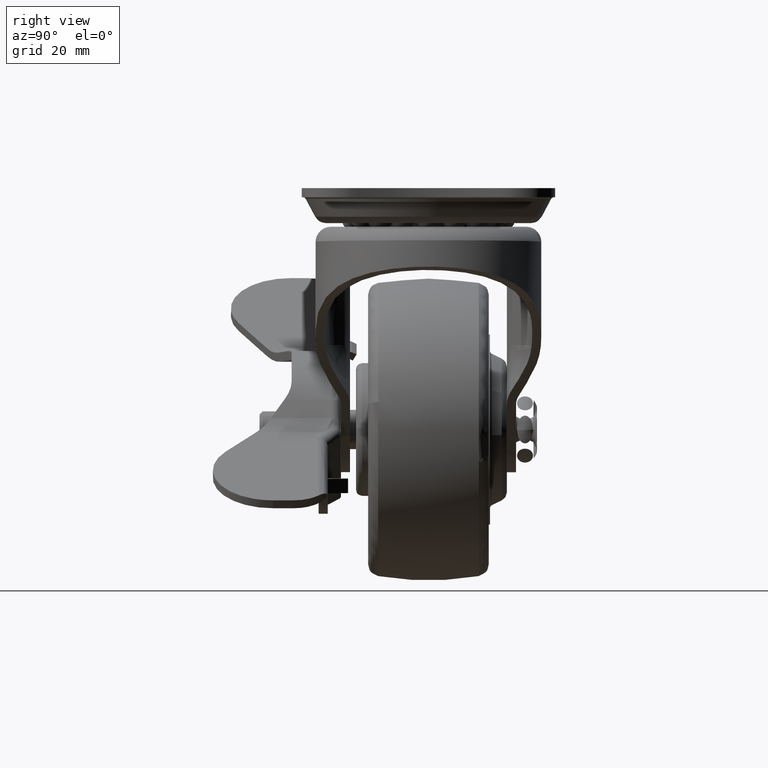
[diagram: clean part render]
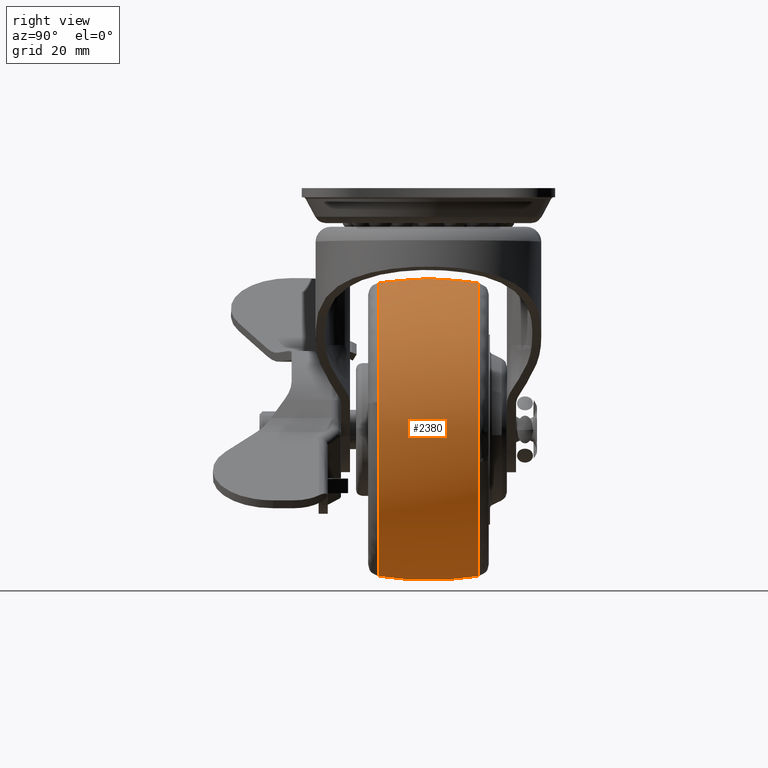
[diagram: same view with one face highlighted and labeled with its STEP entity id]
A machine part, right view. The second image highlights one B-rep face of the part: STEP entity #2380.
In plain terms, the highlighted face is a freeform B-spline surface patch.
Its self-contained STEP definition (entity closure, byte-faithful):
#1488=CARTESIAN_POINT('',(2.711844843311611,8.333322122936623,-43.817029349833831));
#1489=VERTEX_POINT('',#1488);
#1501=CARTESIAN_POINT('',(-21.0,8.333314671390102,-62.800667013600517));
#1502=VERTEX_POINT('',#1501);
#1503=CARTESIAN_POINT('',(2.711844843311611,8.333322122936623,-43.817029349833831));
#1504=CARTESIAN_POINT('',(2.366137890642453,8.333321531497434,-45.359507263044350));
#1505=CARTESIAN_POINT('',(1.399077786540821,8.333320403182880,-48.295009631839577));
#1506=CARTESIAN_POINT('',(-0.479330356080064,8.333319099606841,-51.668787444902421));
#1507=CARTESIAN_POINT('',(-2.415200701565841,8.333318106755872,-54.226632919238803));
#1508=CARTESIAN_POINT('',(-4.581288218339129,8.333317206347308,-56.536778730878638));
#1509=CARTESIAN_POINT('',(-7.069630898855527,8.333316432575836,-58.507440490089557));
#1510=CARTESIAN_POINT('',(-9.943548489110881,8.333315760828365,-60.201670391317457));
#1511=CARTESIAN_POINT('',(-12.606383505787869,8.333315287671557,-61.380184596905458));
#1512=CARTESIAN_POINT('',(-16.386082908451410,8.333314831990363,-62.486915577226412));
#1513=CARTESIAN_POINT('',(-19.205624842155402,8.333314687193234,-62.800958608729808));
#1514=CARTESIAN_POINT('',(-21.0,8.333314671390102,-62.800667013600517));
#1515=B_SPLINE_CURVE_WITH_KNOTS('',3,(#1503,#1504,#1505,#1506,#1507,#1508,#1509,#1510,#1511,#1512,#1513,#1514),.UNSPECIFIED.,.F.,.U.,(4,1,1,1,1,1,1,1,1,4),(0.000000052399855,4.742204515677404,9.228111765718264,11.535150591076770,14.354841987248671,18.712534639827592,21.019566522061659,24.351943221275100,27.427995256347760,32.811041082714873),.UNSPECIFIED.);
#1516=EDGE_CURVE('',#1489,#1502,#1515,.T.);
#1518=CARTESIAN_POINT('',(-45.138136501880808,8.333329461944473,-41.305826440742663));
#1519=VERTEX_POINT('',#1518);
#1536=CARTESIAN_POINT('',(-44.977125332039371,8.333330171501391,-34.547808609732982));
#1537=VERTEX_POINT('',#1536);
#1538=CARTESIAN_POINT('',(-45.138136501880808,8.333329461944473,-41.305826440742663));
#1539=CARTESIAN_POINT('',(-45.399535982546958,8.333329677826079,-39.060306082929273));
#1540=CARTESIAN_POINT('',(-45.345422155903421,8.333329917406212,-36.778325473716599));
#1541=CARTESIAN_POINT('',(-44.977125332039371,8.333330171501391,-34.547808609732982));
#1542=B_SPLINE_CURVE_WITH_KNOTS('',3,(#1538,#1539,#1540,#1541),.UNSPECIFIED.,.F.,.U.,(4,4),(1.555544E-009,6.781945244690015),.UNSPECIFIED.);
#1543=EDGE_CURVE('',#1519,#1537,#1542,.T.);
#1642=CARTESIAN_POINT('',(-21.0,8.333332865113482,-14.199336061692950));
#1643=VERTEX_POINT('',#1642);
#1644=CARTESIAN_POINT('',(-44.977125332039371,8.333330171501391,-34.547808609732982));
#1645=CARTESIAN_POINT('',(-44.759933692226021,8.333330270019333,-33.229582906079408));
#1646=CARTESIAN_POINT('',(-44.107328855077363,8.333330477111991,-30.629129219876500));
#1647=CARTESIAN_POINT('',(-42.412361753777887,8.333330827905694,-26.737103726747190));
#1648=CARTESIAN_POINT('',(-40.223741310928403,8.333331166291114,-23.464379694642020));
#1649=CARTESIAN_POINT('',(-38.005851309779921,8.333331448365136,-21.078602456761470));
#1650=CARTESIAN_POINT('',(-35.957299800854287,8.333331681707213,-19.291026021725951));
#1651=CARTESIAN_POINT('',(-33.548488957295902,8.333331929447558,-17.596604478143529));
#1652=CARTESIAN_POINT('',(-30.088960981624581,8.333332241863761,-15.826845305521360));
#1653=CARTESIAN_POINT('',(-25.809551663007230,8.333332570793216,-14.517746473948700));
#1654=CARTESIAN_POINT('',(-22.603208561160340,8.333332773956528,-14.199131151957239));
#1655=CARTESIAN_POINT('',(-21.0,8.333332865113482,-14.199336061692950));
#1656=B_SPLINE_CURVE_WITH_KNOTS('',3,(#1644,#1645,#1646,#1647,#1648,#1649,#1650,#1651,#1652,#1653,#1654,#1655),.UNSPECIFIED.,.F.,.U.,(4,1,1,1,1,1,1,1,1,4),(0.000000058395081,4.007986975718385,8.016001814997374,12.692028240616860,15.764814338395251,17.768797345565289,20.841583377062339,24.582403207564830,29.392015542777219,34.201612815759873),.UNSPECIFIED.);
#1657=EDGE_CURVE('',#1537,#1643,#1656,.T.);
#1659=CARTESIAN_POINT('',(-21.0,8.333332865113482,-14.199336061692950));
#1660=CARTESIAN_POINT('',(-19.866370945404920,8.333332871577154,-14.199283248625701));
#1661=CARTESIAN_POINT('',(-17.655796940417449,8.333332827209175,-14.354313816077630));
#1662=CARTESIAN_POINT('',(-14.208490859001850,8.333332581724518,-15.076123185097840));
#1663=CARTESIAN_POINT('',(-10.954005381272321,8.333332159362588,-16.276579649769179));
#1664=CARTESIAN_POINT('',(-8.112907830190807,8.333331605036735,-17.829971776618951));
#1665=CARTESIAN_POINT('',(-5.894388972541330,8.333331036858139,-19.411447165294870));
#1666=CARTESIAN_POINT('',(-3.634592079003231,8.333330320759041,-21.396345095604151));
#1667=CARTESIAN_POINT('',(-1.129814162989805,8.333329280124010,-24.268738248545141));
#1668=CARTESIAN_POINT('',(1.094248549119783,8.333327904038249,-28.050207905056649));
#1669=CARTESIAN_POINT('',(2.425927950898445,8.333326555709940,-31.742283292715769));
#1670=CARTESIAN_POINT('',(3.123534306502927,8.333325335252189,-35.076353841429523));
#1671=CARTESIAN_POINT('',(3.438148763960754,8.333323901839771,-38.984367281043632));
#1672=CARTESIAN_POINT('',(3.121550256389699,8.333322795533663,-41.991908263111377));
#1673=CARTESIAN_POINT('',(2.711844843311611,8.333322122936623,-43.817029349833831));
#1674=B_SPLINE_CURVE_WITH_KNOTS('',3,(#1659,#1660,#1661,#1662,#1663,#1664,#1665,#1666,#1667,#1668,#1669,#1670,#1671,#1672,#1673),.UNSPECIFIED.,.F.,.U.,(4,1,1,1,1,1,1,1,1,1,1,1,4),(0.000000091159272,3.400885812149355,6.631785872681036,10.542876450278090,13.773760076622590,16.324456856732219,18.705146072431159,22.786163449148699,27.717561140927149,31.798671798816549,34.519421289346838,37.920377672628661,43.531878032764091),.UNSPECIFIED.);
#1675=EDGE_CURVE('',#1643,#1489,#1674,.T.);
#1716=CARTESIAN_POINT('',(-12.350147431576019,-8.333330459658047,-61.209082753021967));
#1717=VERTEX_POINT('',#1716);
#1718=CARTESIAN_POINT('',(-21.0,-8.333330156381738,-62.800665763766368));
#1719=VERTEX_POINT('',#1718);
#1720=CARTESIAN_POINT('',(-12.350147431576019,-8.333330459658047,-61.209082753021967));
#1721=CARTESIAN_POINT('',(-13.899680987378270,-8.333330347142695,-61.799559201837717));
#1722=CARTESIAN_POINT('',(-16.762365265534520,-8.333330201200576,-62.565458161777272));
#1723=CARTESIAN_POINT('',(-19.710277154289180,-8.333330156369179,-62.800731647511853));
#1724=CARTESIAN_POINT('',(-21.0,-8.333330156381738,-62.800665763766368));
#1725=B_SPLINE_CURVE_WITH_KNOTS('',3,(#1720,#1721,#1722,#1723,#1724),.UNSPECIFIED.,.F.,.U.,(4,1,4),(4.157290E-009,4.974626841624410,8.843796743143985),.UNSPECIFIED.);
#1726=EDGE_CURVE('',#1717,#1719,#1725,.T.);
#1805=CARTESIAN_POINT('',(2.870236089665055,-8.333336889026214,-33.946519199506028));
#1806=VERTEX_POINT('',#1805);
#1818=CARTESIAN_POINT('',(-21.0,-8.333336147830091,-14.199333881372301));
#1819=VERTEX_POINT('',#1818);
#1820=CARTESIAN_POINT('',(-21.0,-8.333336147830091,-14.199333881372301));
#1821=CARTESIAN_POINT('',(-19.512901091230539,-8.333336265292328,-14.199183797554390));
#1822=CARTESIAN_POINT('',(-16.844928179033520,-8.333336461770157,-14.445016723280039));
#1823=CARTESIAN_POINT('',(-13.324088256104391,-8.333336686351355,-15.368425385089720));
#1824=CARTESIAN_POINT('',(-10.161503848887330,-8.333336861082390,-16.663862136170650));
#1825=CARTESIAN_POINT('',(-7.544250261509708,-8.333336979668546,-18.184947140890060));
#1826=CARTESIAN_POINT('',(-4.971200861906037,-8.333337068769437,-20.154685405137361));
#1827=CARTESIAN_POINT('',(-2.558290146156176,-8.333337122476321,-22.517011234890941));
#1828=CARTESIAN_POINT('',(-0.626923521271368,-8.333337123669004,-25.129279859583029));
#1829=CARTESIAN_POINT('',(0.996497695688003,-8.333337083644819,-28.033147415187390));
#1830=CARTESIAN_POINT('',(2.116689762354516,-8.333337014666414,-30.750757630655119));
#1831=CARTESIAN_POINT('',(2.681755806915863,-8.333336931391552,-32.958362243660467));
#1832=CARTESIAN_POINT('',(2.870236089665055,-8.333336889026214,-33.946519199506028));
#1833=B_SPLINE_CURVE_WITH_KNOTS('',3,(#1820,#1821,#1822,#1823,#1824,#1825,#1826,#1827,#1828,#1829,#1830,#1831,#1832),.UNSPECIFIED.,.F.,.U.,(4,1,1,1,1,1,1,1,1,1,4),(0.000000056989606,4.461279191118869,8.004075619817506,10.890807946828140,14.696027619683090,17.057846133853658,20.600630459148370,24.799515064842630,26.767740570103069,30.572958117367509,33.590880149321769),.UNSPECIFIED.);
#1834=EDGE_CURVE('',#1819,#1806,#1833,.T.);
#1836=CARTESIAN_POINT('',(-45.138135306977929,-8.333344578127655,-41.305826435621960));
#1837=VERTEX_POINT('',#1836);
#1838=CARTESIAN_POINT('',(-45.138135306977929,-8.333344578127655,-41.305826435621960));
#1839=CARTESIAN_POINT('',(-45.292276247663693,-8.333344372076033,-39.980661240027992));
#1840=CARTESIAN_POINT('',(-45.363556164700533,-8.333344011782570,-37.840066950671982));
#1841=CARTESIAN_POINT('',(-45.048673829158517,-8.333343409769578,-34.649814941423962));
#1842=CARTESIAN_POINT('',(-44.458958249407416,-8.333342847270615,-31.932101705608918));
#1843=CARTESIAN_POINT('',(-43.420573052637877,-8.333342170394460,-28.954531908518991));
#1844=CARTESIAN_POINT('',(-42.199345970864833,-8.333341558492217,-26.514360891966330));
#1845=CARTESIAN_POINT('',(-40.628512736581712,-8.333340896339088,-24.095812231479130));
#1846=CARTESIAN_POINT('',(-38.977867080258669,-8.333340288338677,-22.060530578409740));
#1847=CARTESIAN_POINT('',(-36.631615627693421,-8.333339533257885,-19.796748496557111));
#1848=CARTESIAN_POINT('',(-33.911459122974541,-8.333338767299493,-17.803221210906742));
#1849=CARTESIAN_POINT('',(-30.496118857741251,-8.333337930636828,-16.021126965432209));
#1850=CARTESIAN_POINT('',(-26.229479681430799,-8.333337024020430,-14.593825919776030));
#1851=CARTESIAN_POINT('',(-22.921134706518249,-8.333336444493590,-14.198867397418210));
#1852=CARTESIAN_POINT('',(-21.0,-8.333336147830091,-14.199333881372301));
#1853=B_SPLINE_CURVE_WITH_KNOTS('',3,(#1838,#1839,#1840,#1841,#1842,#1843,#1844,#1845,#1846,#1847,#1848,#1849,#1850,#1851,#1852),.UNSPECIFIED.,.F.,.U.,(4,1,1,1,1,1,1,1,1,1,1,1,4),(0.000000081167386,4.002281285825973,6.403660834966807,9.605523375094187,12.327100683533040,15.849140995247470,17.770226741074492,20.972038376283368,23.693624223858500,27.535817337270089,31.057863253099619,35.220280054211450,40.983568214676637),.UNSPECIFIED.);
#1854=EDGE_CURVE('',#1837,#1819,#1853,.T.);
#1891=CARTESIAN_POINT('',(2.870236089665055,-8.333336889026214,-33.946519199506028));
#1892=CARTESIAN_POINT('',(3.093638780207436,-8.333336654899149,-35.117469753318261));
#1893=CARTESIAN_POINT('',(3.408437105718714,-8.333336099861853,-37.844184695232862));
#1894=CARTESIAN_POINT('',(3.195158915128003,-8.333335265515304,-41.785764720913548));
#1895=CARTESIAN_POINT('',(2.323578294206855,-8.333334420339657,-45.628306197350838));
#1896=CARTESIAN_POINT('',(1.074205420930652,-8.333333687400140,-48.847493179756327));
#1897=CARTESIAN_POINT('',(-0.608085881879492,-8.333332976753974,-51.860868287056277));
#1898=CARTESIAN_POINT('',(-2.479057344373009,-8.333332370591236,-54.331295737523199));
#1899=CARTESIAN_POINT('',(-4.764831814408455,-8.333331771698191,-56.671915634003390));
#1900=CARTESIAN_POINT('',(-7.855748444720981,-8.333331112444885,-59.116745683670203));
#1901=CARTESIAN_POINT('',(-10.617093706199400,-8.333330680623696,-60.549345302840322));
#1902=CARTESIAN_POINT('',(-12.350147431576019,-8.333330459658047,-61.209082753021967));
#1903=B_SPLINE_CURVE_WITH_KNOTS('',3,(#1891,#1892,#1893,#1894,#1895,#1896,#1897,#1898,#1899,#1900,#1901,#1902),.UNSPECIFIED.,.F.,.U.,(4,1,1,1,1,1,1,1,1,4),(0.000000057777342,3.576232573316162,8.212144562321726,11.788421032960780,15.364661865437450,18.543545263054920,22.119792153395501,24.636433326254100,28.345149995045180,33.908211724294233),.UNSPECIFIED.);
#1904=EDGE_CURVE('',#1806,#1717,#1903,.T.);
#2301=CARTESIAN_POINT('',(-44.989886972804506,9.172664909043675,-41.288624543487195));
#2302=CARTESIAN_POINT('',(-45.832790047515466,4.625584175334386,-41.386605005195271));
#2303=CARTESIAN_POINT('',(-45.832790047515466,-2.479828E-015,-41.386605005195264));
#2304=CARTESIAN_POINT('',(-45.832790047515481,-4.625588870055486,-41.386605005195257));
#2305=CARTESIAN_POINT('',(-44.989885276319605,-9.172674060807461,-41.288624346284969));
#2306=CARTESIAN_POINT('',(-45.151420327021654,9.172664909043672,-39.898990747479175));
#2307=CARTESIAN_POINT('',(-45.999999000000003,4.625584175334384,-39.948145360165718));
#2308=CARTESIAN_POINT('',(-45.999999000000003,-2.479828E-015,-39.948145360165725));
#2309=CARTESIAN_POINT('',(-45.999998999999995,-4.625588870055485,-39.948145360165732));
#2310=CARTESIAN_POINT('',(-45.151418619113649,-9.172674060807459,-39.898990648547191));
#2311=CARTESIAN_POINT('',(-45.151420327021654,9.172664909043675,-38.500000000000000));
#2312=CARTESIAN_POINT('',(-45.999999000000003,4.625584175334386,-38.500000000000000));
#2313=CARTESIAN_POINT('',(-45.999999000000003,-2.479828E-015,-38.500000000000000));
#2314=CARTESIAN_POINT('',(-45.999999000000003,-4.625588870055487,-38.500000000000007));
#2315=CARTESIAN_POINT('',(-45.151418619113649,-9.172674060807461,-38.500000000000000));
#2316=CARTESIAN_POINT('',(-45.151420327021647,9.172664909043673,-14.348579672978346));
#2317=CARTESIAN_POINT('',(-45.999998999999995,4.625584175334386,-13.500000999999996));
#2318=CARTESIAN_POINT('',(-45.999999000000003,-2.479828E-015,-13.500000999999996));
#2319=CARTESIAN_POINT('',(-45.999999000000003,-4.625588870055486,-13.500000999999996));
#2320=CARTESIAN_POINT('',(-45.151418619113656,-9.172674060807463,-14.348581380886351));
#2321=CARTESIAN_POINT('',(-21.000000000000004,9.172664909043675,-14.348579672978348));
#2322=CARTESIAN_POINT('',(-21.000000000000004,4.625584175334386,-13.500001000000001));
#2323=CARTESIAN_POINT('',(-21.0,-2.479828E-015,-13.500000999999999));
#2324=CARTESIAN_POINT('',(-21.0,-4.625588870055487,-13.500000999999996));
#2325=CARTESIAN_POINT('',(-21.0,-9.172674060807461,-14.348581380886353));
#2326=CARTESIAN_POINT('',(3.151420327021652,9.172664909043673,-14.348579672978346));
#2327=CARTESIAN_POINT('',(3.999999000000000,4.625584175334386,-13.500000999999996));
#2328=CARTESIAN_POINT('',(3.999999000000001,-2.479828E-015,-13.500000999999996));
#2329=CARTESIAN_POINT('',(3.999999000000000,-4.625588870055486,-13.500000999999996));
#2330=CARTESIAN_POINT('',(3.151418619113649,-9.172674060807463,-14.348581380886351));
#2331=CARTESIAN_POINT('',(3.151420327021651,9.172664909043675,-38.500000000000000));
#2332=CARTESIAN_POINT('',(3.999999000000001,4.625584175334386,-38.500000000000000));
#2333=CARTESIAN_POINT('',(3.999999000000001,-2.479828E-015,-38.500000000000000));
#2334=CARTESIAN_POINT('',(3.999999000000000,-4.625588870055487,-38.500000000000007));
#2335=CARTESIAN_POINT('',(3.151418619113649,-9.172674060807461,-38.500000000000000));
#2336=CARTESIAN_POINT('',(3.151420327021652,9.172664909043673,-62.651420327021633));
#2337=CARTESIAN_POINT('',(3.999999000000000,4.625584175334386,-63.499998999999981));
#2338=CARTESIAN_POINT('',(3.999999000000001,-2.479828E-015,-63.499998999999988));
#2339=CARTESIAN_POINT('',(3.999999000000000,-4.625588870055486,-63.499998999999981));
#2340=CARTESIAN_POINT('',(3.151418619113649,-9.172674060807463,-62.651418619113649));
#2341=CARTESIAN_POINT('',(-21.000000000000004,9.172664909043675,-62.651420327021661));
#2342=CARTESIAN_POINT('',(-21.000000000000004,4.625584175334386,-63.499999000000017));
#2343=CARTESIAN_POINT('',(-21.0,-2.479828E-015,-63.499999000000003));
#2344=CARTESIAN_POINT('',(-21.0,-4.625588870055487,-63.499999000000010));
#2345=CARTESIAN_POINT('',(-21.0,-9.172674060807461,-62.651418619113649));
#2353=(BOUNDED_SURFACE()B_SPLINE_SURFACE(2,2,((#2301,#2306,#2311,#2316,#2321,#2326,#2331,#2336,#2341),(#2302,#2307,#2312,#2317,#2322,#2327,#2332,#2337,#2342),(#2303,#2308,#2313,#2318,#2323,#2328,#2333,#2338,#2343),(#2304,#2309,#2314,#2319,#2324,#2329,#2334,#2339,#2344),(#2305,#2310,#2315,#2320,#2325,#2330,#2335,#2340,#2345)),.UNSPECIFIED.,.F.,.F.,.U.)B_SPLINE_SURFACE_WITH_KNOTS((3,2,3),(3,2,2,2,3),(0.0,9.400041173562366,18.800091656890189),(0.0,3.313707675142986,44.735062255598251,86.156416836053523,127.577771416508800),.UNSPECIFIED.)GEOMETRIC_REPRESENTATION_ITEM()RATIONAL_B_SPLINE_SURFACE(((0.918952125187789,0.937854272569402,0.960356828081913,0.679074825495524,0.960356828081913,0.679074825495524,0.960356828081913,0.679074825495524,0.960356828081913),(0.933740173188714,0.952946499487964,0.975811172745177,0.690002697405713,0.975811172745177,0.690002697405713,0.975811172745177,0.690002697405713,0.975811172745177),(0.956886126402807,0.976568547383107,1.0,0.707106781186548,1.0,0.707106781186548,1.0,0.707106781186548,1.0),(0.933740150265049,0.952946476092777,0.975811148788654,0.690002680465892,0.975811148788654,0.690002680465892,0.975811148788654,0.690002680465892,0.975811148788654),(0.918952095895742,0.937854242674841,0.960356797470072,0.679074803849684,0.960356797470072,0.679074803849684,0.960356797470072,0.679074803849684,0.960356797470072)))REPRESENTATION_ITEM('')SURFACE());
#2354=ORIENTED_EDGE('',*,*,#1657,.F.);
#2355=ORIENTED_EDGE('',*,*,#1543,.F.);
#2356=CARTESIAN_POINT('',(-45.138136501880808,8.333329461944473,-41.305826440742663));
#2357=CARTESIAN_POINT('',(-45.672748328486222,5.151632376967581,-41.367970651587633));
#2358=CARTESIAN_POINT('',(-46.065197226230573,-0.442184651708560,-41.413589621866990));
#2359=CARTESIAN_POINT('',(-45.528037336017199,-6.011552173793973,-41.351149290027777));
#2360=CARTESIAN_POINT('',(-45.138135306977929,-8.333344578127655,-41.305826435621960));
#2361=B_SPLINE_CURVE_WITH_KNOTS('',3,(#2356,#2357,#2358,#2359,#2360),.UNSPECIFIED.,.F.,.U.,(4,1,4),(2.476437E-009,9.680604686053897,16.744834499775280),.UNSPECIFIED.);
#2362=EDGE_CURVE('',#1519,#1837,#2361,.T.);
#2363=ORIENTED_EDGE('',*,*,#2362,.T.);
#2364=ORIENTED_EDGE('',*,*,#1854,.T.);
#2365=ORIENTED_EDGE('',*,*,#1834,.T.);
#2366=ORIENTED_EDGE('',*,*,#1904,.T.);
#2367=ORIENTED_EDGE('',*,*,#1726,.T.);
#2368=CARTESIAN_POINT('',(-21.0,8.333314671390102,-62.800667013600517));
#2369=CARTESIAN_POINT('',(-21.000000000000110,5.151625407857488,-63.338937427406940));
#2370=CARTESIAN_POINT('',(-20.999999999999869,-0.442183559871037,-63.733878405403082));
#2371=CARTESIAN_POINT('',(-21.000000000000082,-6.011543092197311,-63.193227554936328));
#2372=CARTESIAN_POINT('',(-21.0,-8.333330156381738,-62.800665763766368));
#2373=B_SPLINE_CURVE_WITH_KNOTS('',3,(#2368,#2369,#2370,#2371,#2372),.UNSPECIFIED.,.F.,.U.,(4,1,4),(2.475751E-009,9.680587558085119,16.744804872994209),.UNSPECIFIED.);
#2374=EDGE_CURVE('',#1502,#1719,#2373,.T.);
#2375=ORIENTED_EDGE('',*,*,#2374,.F.);
#2376=ORIENTED_EDGE('',*,*,#1516,.F.);
#2377=ORIENTED_EDGE('',*,*,#1675,.F.);
#2378=EDGE_LOOP('',(#2354,#2355,#2363,#2364,#2365,#2366,#2367,#2375,#2376,#2377));
#2379=FACE_OUTER_BOUND('',#2378,.T.);
#2380=ADVANCED_FACE('',(#2379),#2353,.T.);